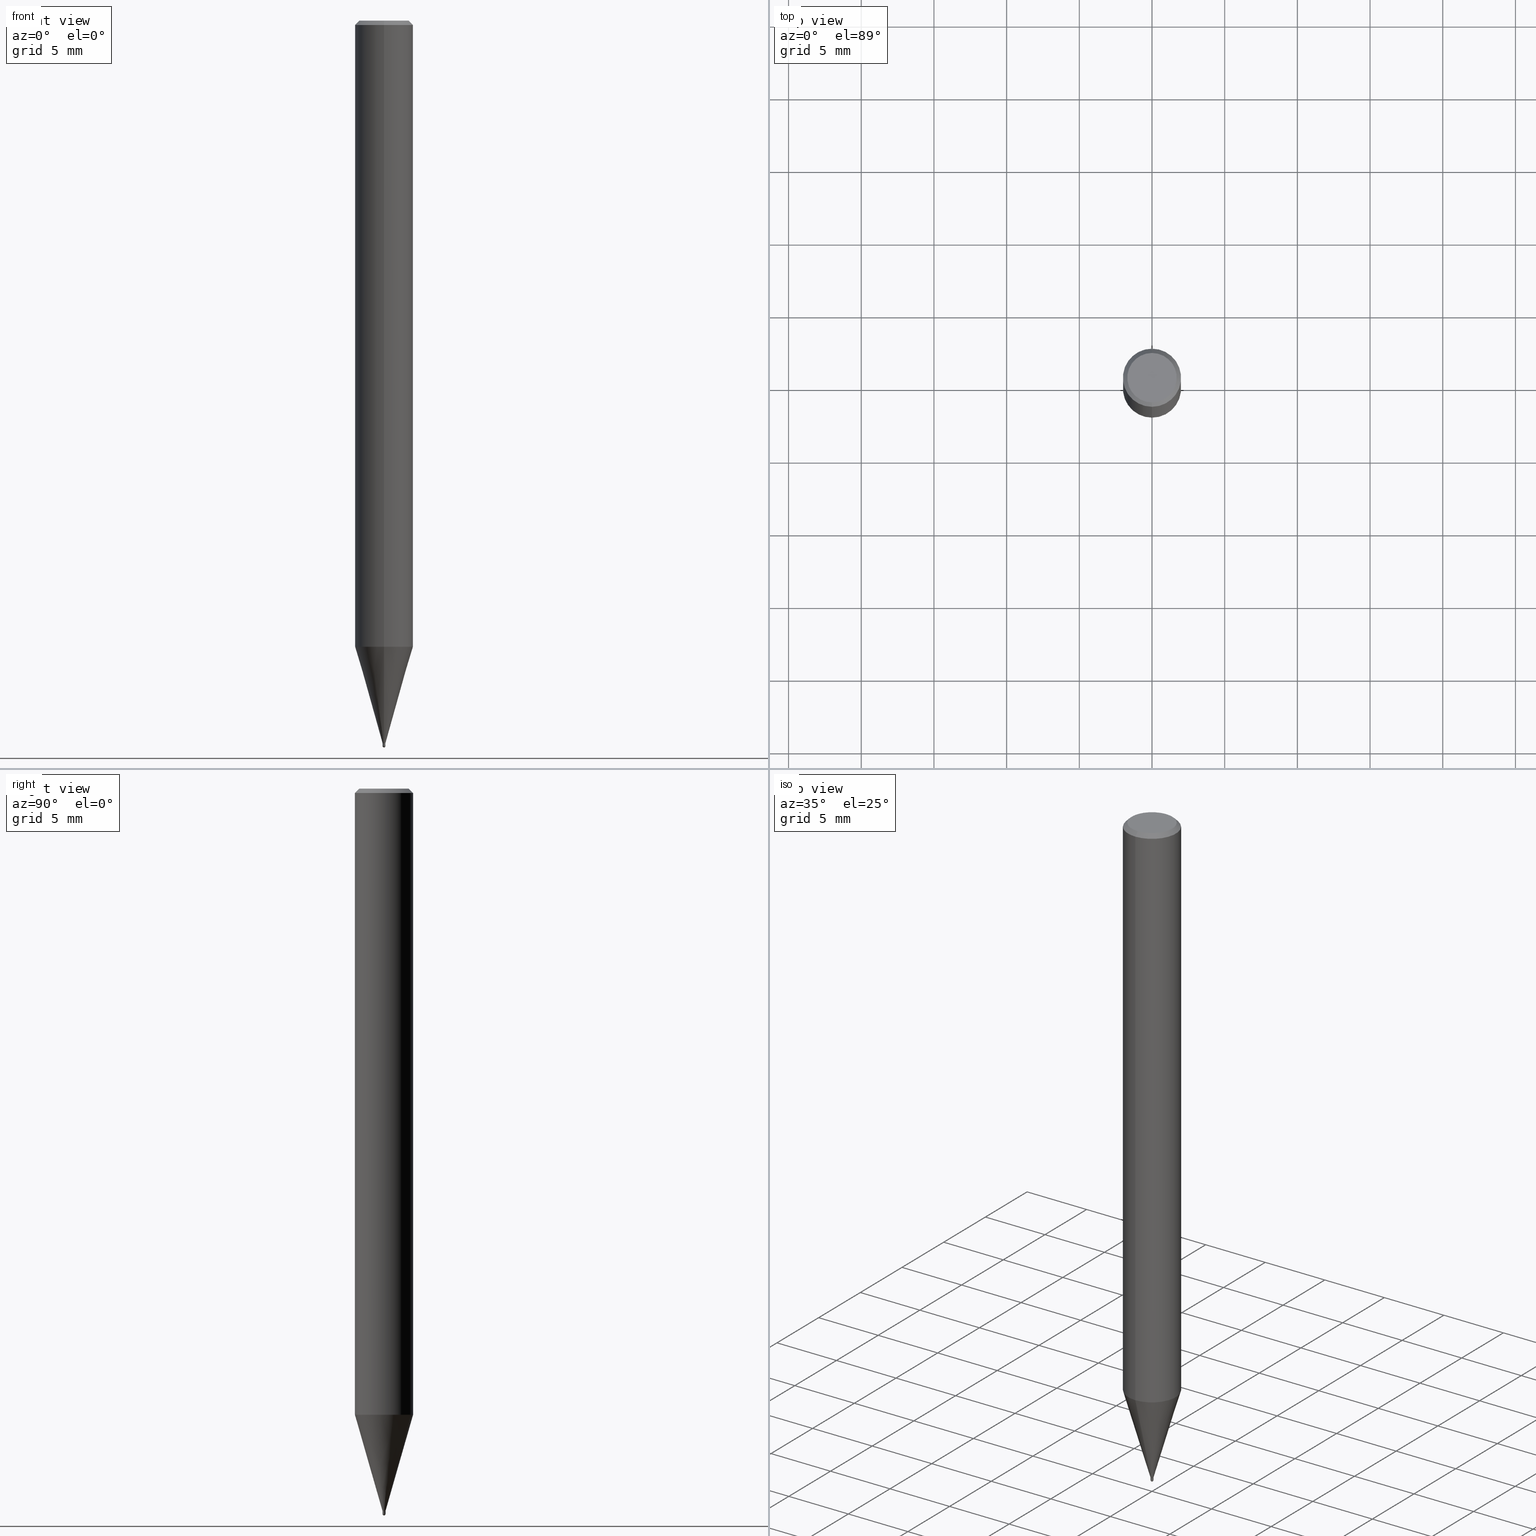
[diagram: canonical four-view strip — front | top / right | iso, engineering-drawing reading convention]
A machine part, canonical four-view strip (front | top / right | iso — engineering-drawing reading convention). The complete STEP part file that produces these views, byte-faithful:
ISO-10303-21;
HEADER;
FILE_DESCRIPTION(('no description'),'unknown implementation level');
FILE_NAME('HSB2002-0030-Huellk.stp','  ',('CIMSOURCE GmbH'),('CADClick - KiM GmbH - www.kimweb.de'),'unknown preprocess','ACIS','unknown authorization');
FILE_SCHEMA(('automotive_design'));
ENDSEC;
DATA;
#1=MECHANICAL_DESIGN_GEOMETRIC_PRESENTATION_REPRESENTATION(' ',(#14,#15,#16,#17,#18,#19,#20,#21,#22,#23,#24,#25,#26,#27,#28,#29,#30,#31,#32,#33,#34,#35,#36,#37,#38,#39,#40,#41,#42,#43,#44,#45,#46,#47,#48,#49,#50,#51,#52,#53,#54,#55,#56,#57,#58,#59,#60,#61,#62,#63,#64,#65,#66),#10);
#2=PRODUCT_DEFINITION_CONTEXT('',#67,'design');
#3=APPLICATION_PROTOCOL_DEFINITION('INTERNATIONAL STANDARD','automotive_design',1994,#67);
#4=PRODUCT_CATEGORY_RELATIONSHIP('NONE','NONE',#68,#69);
#5=SHAPE_DEFINITION_REPRESENTATION(#70,#71);
#6=PRODUCT_DEFINITION_CONTEXT('',#72,'design');
#7=APPLICATION_PROTOCOL_DEFINITION('INTERNATIONAL STANDARD','automotive_design',1994,#72);
#8=PRODUCT_CATEGORY_RELATIONSHIP('NONE','NONE',#73,#74);
#9=SHAPE_DEFINITION_REPRESENTATION(#75,#76);
#10= (GEOMETRIC_REPRESENTATION_CONTEXT(3)GLOBAL_UNCERTAINTY_ASSIGNED_CONTEXT((#79))GLOBAL_UNIT_ASSIGNED_CONTEXT((#81,#82,#83))REPRESENTATION_CONTEXT('NONE','WORKSPACE'));
#14=STYLED_ITEM('',(#85),#86);
#15=STYLED_ITEM('',(#87),#88);
#16=STYLED_ITEM('',(#89),#90);
#17=STYLED_ITEM('',(#91),#92);
#18=STYLED_ITEM('',(#93),#94);
#19=STYLED_ITEM('',(#95),#96);
#20=STYLED_ITEM('',(#97),#98);
#21=STYLED_ITEM('',(#99),#100);
#22=STYLED_ITEM('',(#101),#102);
#23=STYLED_ITEM('',(#103),#104);
#24=STYLED_ITEM('',(#105),#106);
#25=STYLED_ITEM('',(#107),#108);
#26=STYLED_ITEM('',(#109),#110);
#27=STYLED_ITEM('',(#111),#112);
#28=STYLED_ITEM('',(#113),#114);
#29=STYLED_ITEM('',(#115),#116);
#30=STYLED_ITEM('',(#117),#118);
#31=STYLED_ITEM('',(#119),#120);
#32=STYLED_ITEM('',(#121),#122);
#33=STYLED_ITEM('',(#123),#124);
#34=STYLED_ITEM('',(#125),#126);
#35=STYLED_ITEM('',(#127),#128);
#36=STYLED_ITEM('',(#129),#130);
#37=STYLED_ITEM('',(#131),#132);
#38=STYLED_ITEM('',(#133),#134);
#39=STYLED_ITEM('',(#135),#136);
#40=STYLED_ITEM('',(#137),#138);
#41=STYLED_ITEM('',(#139),#140);
#42=STYLED_ITEM('',(#141),#142);
#43=STYLED_ITEM('',(#143),#144);
#44=STYLED_ITEM('',(#145),#146);
#45=STYLED_ITEM('',(#147),#148);
#46=STYLED_ITEM('',(#149),#150);
#47=STYLED_ITEM('',(#151),#152);
#48=STYLED_ITEM('',(#153),#154);
#49=STYLED_ITEM('',(#155),#156);
#50=STYLED_ITEM('',(#157),#158);
#51=STYLED_ITEM('',(#159),#160);
#52=STYLED_ITEM('',(#161),#162);
#53=STYLED_ITEM('',(#163),#164);
#54=STYLED_ITEM('',(#165),#166);
#55=STYLED_ITEM('',(#167),#168);
#56=STYLED_ITEM('',(#169),#170);
#57=STYLED_ITEM('',(#171),#172);
#58=STYLED_ITEM('',(#173),#174);
#59=STYLED_ITEM('',(#175),#176);
#60=STYLED_ITEM('',(#177),#178);
#61=STYLED_ITEM('',(#179),#180);
#62=STYLED_ITEM('',(#181),#182);
#63=STYLED_ITEM('',(#183),#184);
#64=STYLED_ITEM('',(#185),#186);
#65=STYLED_ITEM('',(#187),#188);
#66=STYLED_ITEM('',(#189),#190);
#67=APPLICATION_CONTEXT(' ');
#68=PRODUCT_CATEGORY('part','NONE');
#69=PRODUCT_RELATED_PRODUCT_CATEGORY('detail',' ',(#191));
#70=PRODUCT_DEFINITION_SHAPE('NONE','NONE',#192);
#71=ADVANCED_BREP_SHAPE_REPRESENTATION('1',(#190,#193),#10);
#72=APPLICATION_CONTEXT(' ');
#73=PRODUCT_CATEGORY('part','NONE');
#74=PRODUCT_RELATED_PRODUCT_CATEGORY('detail',' ',(#194));
#75=PRODUCT_DEFINITION_SHAPE('NONE','NONE',#195);
#76=ADVANCED_BREP_SHAPE_REPRESENTATION('2',(#182,#196),#10);
#79=UNCERTAINTY_MEASURE_WITH_UNIT(LENGTH_MEASURE(1.0E-006),#81,'','');
#81= (CONVERSION_BASED_UNIT('MILLIMETRE',#199)LENGTH_UNIT()NAMED_UNIT(#202));
#82= (NAMED_UNIT(#204)PLANE_ANGLE_UNIT()SI_UNIT($,.RADIAN.));
#83= (NAMED_UNIT(#204)SOLID_ANGLE_UNIT()SI_UNIT($,.STERADIAN.));
#85=PRESENTATION_STYLE_ASSIGNMENT((#210));
#86=ADVANCED_FACE('',(#211),#212,.T.);
#87=PRESENTATION_STYLE_ASSIGNMENT((#213));
#88=VERTEX_POINT('',#214);
#89=PRESENTATION_STYLE_ASSIGNMENT((#215));
#90=ADVANCED_FACE('',(#216),#217,.T.);
#91=PRESENTATION_STYLE_ASSIGNMENT((#218));
#92=VERTEX_POINT('',#219);
#93=PRESENTATION_STYLE_ASSIGNMENT((#220));
#94=ADVANCED_FACE('',(#221),#222,.T.);
#95=PRESENTATION_STYLE_ASSIGNMENT((#223));
#96=EDGE_CURVE('',#102,#88,#224,.T.);
#97=PRESENTATION_STYLE_ASSIGNMENT((#225));
#98=VERTEX_POINT('',#226);
#99=PRESENTATION_STYLE_ASSIGNMENT((#227));
#100=EDGE_CURVE('',#152,#92,#228,.T.);
#101=PRESENTATION_STYLE_ASSIGNMENT((#229));
#102=VERTEX_POINT('',#230);
#103=PRESENTATION_STYLE_ASSIGNMENT((#231));
#104=EDGE_CURVE('',#98,#184,#232,.T.);
#105=PRESENTATION_STYLE_ASSIGNMENT((#233));
#106=EDGE_CURVE('',#128,#188,#234,.T.);
#107=PRESENTATION_STYLE_ASSIGNMENT((#235));
#108=VERTEX_POINT('',#236);
#109=PRESENTATION_STYLE_ASSIGNMENT((#237));
#110=EDGE_CURVE('',#88,#102,#238,.T.);
#111=PRESENTATION_STYLE_ASSIGNMENT((#239));
#112=EDGE_CURVE('',#108,#118,#240,.T.);
#113=PRESENTATION_STYLE_ASSIGNMENT((#241));
#114=EDGE_CURVE('',#138,#142,#242,.T.);
#115=PRESENTATION_STYLE_ASSIGNMENT((#243));
#116=ADVANCED_FACE('',(#244),#245,.T.);
#117=PRESENTATION_STYLE_ASSIGNMENT((#246));
#118=VERTEX_POINT('',#247);
#119=PRESENTATION_STYLE_ASSIGNMENT((#248));
#120=ADVANCED_FACE('',(#249),#250,.T.);
#121=PRESENTATION_STYLE_ASSIGNMENT((#251));
#122=EDGE_CURVE('',#128,#88,#252,.T.);
#123=PRESENTATION_STYLE_ASSIGNMENT((#253));
#124=EDGE_CURVE('',#92,#152,#254,.T.);
#125=PRESENTATION_STYLE_ASSIGNMENT((#255));
#126=EDGE_CURVE('',#142,#138,#256,.T.);
#127=PRESENTATION_STYLE_ASSIGNMENT((#257));
#128=VERTEX_POINT('',#258);
#129=PRESENTATION_STYLE_ASSIGNMENT((#259));
#130=ADVANCED_FACE('',(#260),#261,.T.);
#131=PRESENTATION_STYLE_ASSIGNMENT((#262));
#132=ADVANCED_FACE('',(#263),#264,.T.);
#133=PRESENTATION_STYLE_ASSIGNMENT((#265));
#134=EDGE_CURVE('',#102,#188,#266,.T.);
#135=PRESENTATION_STYLE_ASSIGNMENT((#267));
#136=ADVANCED_FACE('',(#268),#269,.T.);
#137=PRESENTATION_STYLE_ASSIGNMENT((#270));
#138=VERTEX_POINT('',#271);
#139=PRESENTATION_STYLE_ASSIGNMENT((#272));
#140=EDGE_CURVE('',#176,#138,#273,.T.);
#141=PRESENTATION_STYLE_ASSIGNMENT((#274));
#142=VERTEX_POINT('',#275);
#143=PRESENTATION_STYLE_ASSIGNMENT((#276));
#144=ADVANCED_FACE('',(#277),#278,.T.);
#145=PRESENTATION_STYLE_ASSIGNMENT((#279));
#146=ADVANCED_FACE('',(#280),#281,.T.);
#147=PRESENTATION_STYLE_ASSIGNMENT((#282));
#148=EDGE_CURVE('',#152,#176,#283,.T.);
#149=PRESENTATION_STYLE_ASSIGNMENT((#284));
#150=EDGE_CURVE('',#188,#128,#285,.T.);
#151=PRESENTATION_STYLE_ASSIGNMENT((#286));
#152=VERTEX_POINT('',#287);
#153=PRESENTATION_STYLE_ASSIGNMENT((#288));
#154=EDGE_CURVE('',#142,#168,#289,.T.);
#155=PRESENTATION_STYLE_ASSIGNMENT((#290));
#156=EDGE_CURVE('',#168,#92,#291,.T.);
#157=PRESENTATION_STYLE_ASSIGNMENT((#292));
#158=EDGE_CURVE('',#98,#118,#293,.T.);
#159=PRESENTATION_STYLE_ASSIGNMENT((#294));
#160=ADVANCED_FACE('',(#295),#296,.T.);
#161=PRESENTATION_STYLE_ASSIGNMENT((#297));
#162=ADVANCED_FACE('',(#298),#299,.T.);
#163=PRESENTATION_STYLE_ASSIGNMENT((#300));
#164=EDGE_CURVE('',#98,#118,#301,.T.);
#165=PRESENTATION_STYLE_ASSIGNMENT((#302));
#166=EDGE_CURVE('',#108,#184,#303,.T.);
#167=PRESENTATION_STYLE_ASSIGNMENT((#304));
#168=VERTEX_POINT('',#305);
#169=PRESENTATION_STYLE_ASSIGNMENT((#306));
#170=EDGE_CURVE('',#168,#176,#307,.T.);
#171=PRESENTATION_STYLE_ASSIGNMENT((#308));
#172=ADVANCED_FACE('',(#309,#310),#311,.T.);
#173=PRESENTATION_STYLE_ASSIGNMENT((#312));
#174=EDGE_CURVE('',#118,#98,#313,.T.);
#175=PRESENTATION_STYLE_ASSIGNMENT((#314));
#176=VERTEX_POINT('',#315);
#177=PRESENTATION_STYLE_ASSIGNMENT((#316));
#178=ADVANCED_FACE('',(#317),#318,.T.);
#179=PRESENTATION_STYLE_ASSIGNMENT((#319));
#180=EDGE_CURVE('',#176,#168,#320,.T.);
#181=PRESENTATION_STYLE_ASSIGNMENT((#321));
#182=MANIFOLD_SOLID_BREP('2',#322);
#183=PRESENTATION_STYLE_ASSIGNMENT((#323));
#184=VERTEX_POINT('',#324);
#185=PRESENTATION_STYLE_ASSIGNMENT((#325));
#186=EDGE_CURVE('',#184,#108,#326,.T.);
#187=PRESENTATION_STYLE_ASSIGNMENT((#327));
#188=VERTEX_POINT('',#328);
#189=PRESENTATION_STYLE_ASSIGNMENT((#329));
#190=MANIFOLD_SOLID_BREP('1',#330);
#191=PRODUCT('1','1','PART-1-DESC',(#331));
#192=PRODUCT_DEFINITION('NONE','NONE',#332,#2);
#193=AXIS2_PLACEMENT_3D('',#333,#334,#335);
#194=PRODUCT('2','2','PART-2-DESC',(#336));
#195=PRODUCT_DEFINITION('NONE','NONE',#337,#6);
#196=AXIS2_PLACEMENT_3D('',#338,#339,#340);
#199=LENGTH_MEASURE_WITH_UNIT(LENGTH_MEASURE(1.0),#341);
#202=DIMENSIONAL_EXPONENTS(1.0,0.0,0.0,0.0,0.0,0.0,0.0);
#204=DIMENSIONAL_EXPONENTS(0.0,0.0,0.0,0.0,0.0,0.0,0.0);
#210=SURFACE_STYLE_USAGE(.BOTH.,#342);
#211=FACE_OUTER_BOUND('',#343,.T.);
#212=CYLINDRICAL_SURFACE('',#344,2.0);
#213=POINT_STYLE(' ',#345,POSITIVE_LENGTH_MEASURE(1.0E-006),#346);
#214=CARTESIAN_POINT('',(2.44915147732706E-016,-1.99995,-43.074));
#215=SURFACE_STYLE_USAGE(.BOTH.,#347);
#216=FACE_OUTER_BOUND('',#348,.T.);
#217=CONICAL_SURFACE('',#349,0.09995,0.000499999958333354);
#218=POINT_STYLE(' ',#350,POSITIVE_LENGTH_MEASURE(1.0E-006),#351);
#219=CARTESIAN_POINT('',(0.0,2.0,-43.074));
#220=SURFACE_STYLE_USAGE(.BOTH.,#352);
#221=FACE_OUTER_BOUND('',#353,.T.);
#222=SPHERICAL_SURFACE('',#354,0.1);
#223=CURVE_STYLE('',#355,POSITIVE_LENGTH_MEASURE(1.0E-006),#356);
#224=CIRCLE('',#357,1.99995);
#225=POINT_STYLE(' ',#358,POSITIVE_LENGTH_MEASURE(1.0E-006),#359);
#226=CARTESIAN_POINT('',(1.22460635382238E-017,-0.1,-49.9));
#227=CURVE_STYLE('',#360,POSITIVE_LENGTH_MEASURE(1.0E-006),#361);
#228=CIRCLE('',#362,2.0);
#229=POINT_STYLE(' ',#363,POSITIVE_LENGTH_MEASURE(1.0E-006),#364);
#230=CARTESIAN_POINT('',(0.0,1.99995,-43.074));
#231=CURVE_STYLE('',#365,POSITIVE_LENGTH_MEASURE(1.0E-006),#366);
#232=LINE('',#367,#368);
#233=CURVE_STYLE('',#369,POSITIVE_LENGTH_MEASURE(1.0E-006),#370);
#234=CIRCLE('',#371,0.09995);
#235=POINT_STYLE(' ',#372,POSITIVE_LENGTH_MEASURE(1.0E-006),#373);
#236=CARTESIAN_POINT('',(0.0,0.0999,-49.7));
#237=CURVE_STYLE('',#374,POSITIVE_LENGTH_MEASURE(1.0E-006),#375);
#238=CIRCLE('',#376,1.99995);
#239=CURVE_STYLE('',#377,POSITIVE_LENGTH_MEASURE(1.0E-006),#378);
#240=LINE('',#379,#380);
#241=CURVE_STYLE('',#381,POSITIVE_LENGTH_MEASURE(1.0E-006),#382);
#242=CIRCLE('',#383,1.7);
#243=SURFACE_STYLE_USAGE(.BOTH.,#384);
#244=FACE_OUTER_BOUND('',#385,.T.);
#245=CYLINDRICAL_SURFACE('',#386,2.0);
#246=POINT_STYLE(' ',#387,POSITIVE_LENGTH_MEASURE(1.0E-006),#388);
#247=CARTESIAN_POINT('',(0.0,0.1,-49.9));
#248=SURFACE_STYLE_USAGE(.BOTH.,#389);
#249=FACE_OUTER_BOUND('',#390,.T.);
#250=CONICAL_SURFACE('',#391,1.04995,0.279256176986881);
#251=CURVE_STYLE('',#392,POSITIVE_LENGTH_MEASURE(1.0E-006),#393);
#252=LINE('',#394,#395);
#253=CURVE_STYLE('',#396,POSITIVE_LENGTH_MEASURE(1.0E-006),#397);
#254=CIRCLE('',#398,2.0);
#255=CURVE_STYLE('',#399,POSITIVE_LENGTH_MEASURE(1.0E-006),#400);
#256=CIRCLE('',#401,1.7);
#257=POINT_STYLE(' ',#402,POSITIVE_LENGTH_MEASURE(1.0E-006),#403);
#258=CARTESIAN_POINT('',(1.22399405064546E-017,-0.09995,-49.7));
#259=SURFACE_STYLE_USAGE(.BOTH.,#404);
#260=FACE_OUTER_BOUND('',#405,.T.);
#261=PLANE('',#406);
#262=SURFACE_STYLE_USAGE(.BOTH.,#407);
#263=FACE_OUTER_BOUND('',#408,.T.);
#264=CONICAL_SURFACE('',#409,1.85,0.785398163397453);
#265=CURVE_STYLE('',#410,POSITIVE_LENGTH_MEASURE(1.0E-006),#411);
#266=LINE('',#412,#413);
#267=SURFACE_STYLE_USAGE(.BOTH.,#414);
#268=FACE_OUTER_BOUND('',#415,.T.);
#269=CONICAL_SURFACE('',#416,1.04995,0.279256176986881);
#270=POINT_STYLE(' ',#417,POSITIVE_LENGTH_MEASURE(1.0E-006),#418);
#271=CARTESIAN_POINT('',(2.08183080149804E-016,-1.7,0.0));
#272=CURVE_STYLE('',#419,POSITIVE_LENGTH_MEASURE(1.0E-006),#420);
#273=LINE('',#421,#422);
#274=POINT_STYLE(' ',#423,POSITIVE_LENGTH_MEASURE(1.0E-006),#424);
#275=CARTESIAN_POINT('',(0.0,1.7,0.0));
#276=SURFACE_STYLE_USAGE(.BOTH.,#425);
#277=FACE_OUTER_BOUND('',#426,.T.);
#278=SPHERICAL_SURFACE('',#427,0.1);
#279=SURFACE_STYLE_USAGE(.BOTH.,#428);
#280=FACE_OUTER_BOUND('',#429,.T.);
#281=CONICAL_SURFACE('',#430,0.09995,0.000499999958333354);
#282=CURVE_STYLE('',#431,POSITIVE_LENGTH_MEASURE(1.0E-006),#432);
#283=LINE('',#433,#434);
#284=CURVE_STYLE('',#435,POSITIVE_LENGTH_MEASURE(1.0E-006),#436);
#285=CIRCLE('',#437,0.09995);
#286=POINT_STYLE(' ',#438,POSITIVE_LENGTH_MEASURE(1.0E-006),#439);
#287=CARTESIAN_POINT('',(2.44921270764475E-016,-2.0,-43.074));
#288=CURVE_STYLE('',#440,POSITIVE_LENGTH_MEASURE(1.0E-006),#441);
#289=LINE('',#442,#443);
#290=CURVE_STYLE('',#444,POSITIVE_LENGTH_MEASURE(1.0E-006),#445);
#291=LINE('',#446,#447);
#292=CURVE_STYLE('',#448,POSITIVE_LENGTH_MEASURE(1.0E-006),#449);
#293=CIRCLE('',#450,0.1);
#294=SURFACE_STYLE_USAGE(.BOTH.,#451);
#295=FACE_OUTER_BOUND('',#452,.T.);
#296=PLANE('',#453);
#297=SURFACE_STYLE_USAGE(.BOTH.,#454);
#298=FACE_OUTER_BOUND('',#455,.T.);
#299=CONICAL_SURFACE('',#456,1.85,0.785398163397453);
#300=CURVE_STYLE('',#457,POSITIVE_LENGTH_MEASURE(1.0E-006),#458);
#301=CIRCLE('',#459,0.1);
#302=CURVE_STYLE('',#460,POSITIVE_LENGTH_MEASURE(1.0E-006),#461);
#303=CIRCLE('',#462,0.0999);
#304=POINT_STYLE(' ',#463,POSITIVE_LENGTH_MEASURE(1.0E-006),#464);
#305=CARTESIAN_POINT('',(0.0,2.0,-0.299999999999997));
#306=CURVE_STYLE('',#465,POSITIVE_LENGTH_MEASURE(1.0E-006),#466);
#307=CIRCLE('',#467,2.0);
#308=SURFACE_STYLE_USAGE(.BOTH.,#468);
#309=FACE_OUTER_BOUND('',#469,.T.);
#310=FACE_BOUND('',#470,.T.);
#311=PLANE('',#471);
#312=CURVE_STYLE('',#472,POSITIVE_LENGTH_MEASURE(1.0E-006),#473);
#313=CIRCLE('',#474,0.1);
#314=POINT_STYLE(' ',#475,POSITIVE_LENGTH_MEASURE(1.0E-006),#476);
#315=CARTESIAN_POINT('',(2.44921270764475E-016,-2.0,-0.299999999999997));
#316=SURFACE_STYLE_USAGE(.BOTH.,#477);
#317=FACE_OUTER_BOUND('',#478,.T.);
#318=PLANE('',#479);
#319=CURVE_STYLE('',#480,POSITIVE_LENGTH_MEASURE(1.0E-006),#481);
#320=CIRCLE('',#482,2.0);
#321=SURFACE_STYLE_USAGE(.BOTH.,#483);
#322=CLOSED_SHELL('',(#94,#146,#178,#90,#144));
#323=POINT_STYLE(' ',#484,POSITIVE_LENGTH_MEASURE(1.0E-006),#485);
#324=CARTESIAN_POINT('',(1.22338174746855E-017,-0.0999,-49.7));
#325=CURVE_STYLE('',#486,POSITIVE_LENGTH_MEASURE(1.0E-006),#487);
#326=CIRCLE('',#488,0.0999);
#327=POINT_STYLE(' ',#489,POSITIVE_LENGTH_MEASURE(1.0E-006),#490);
#328=CARTESIAN_POINT('',(0.0,0.09995,-49.7));
#329=SURFACE_STYLE_USAGE(.BOTH.,#491);
#330=CLOSED_SHELL('',(#120,#116,#162,#172,#160,#132,#86,#136,#130));
#331=PRODUCT_CONTEXT('',#67,'mechanical');
#332=PRODUCT_DEFINITION_FORMATION_WITH_SPECIFIED_SOURCE(' ','NONE',#191,.NOT_KNOWN.);
#333=CARTESIAN_POINT('',(0.0,0.0,0.0));
#334=DIRECTION('',(0.0,0.0,1.0));
#335=DIRECTION('',(1.0,0.0,0.0));
#336=PRODUCT_CONTEXT('',#72,'mechanical');
#337=PRODUCT_DEFINITION_FORMATION_WITH_SPECIFIED_SOURCE(' ','NONE',#194,.NOT_KNOWN.);
#338=CARTESIAN_POINT('',(0.0,0.0,0.0));
#339=DIRECTION('',(0.0,0.0,1.0));
#340=DIRECTION('',(1.0,0.0,0.0));
#341= (NAMED_UNIT(#202)LENGTH_UNIT()SI_UNIT(.MILLI.,.METRE.));
#342=SURFACE_SIDE_STYLE('',(#493));
#343=EDGE_LOOP('',(#494,#495,#496,#497));
#344=AXIS2_PLACEMENT_3D('',#498,#499,#500);
#345=PRE_DEFINED_MARKER('');
#346=COLOUR_RGB('',0.498039215803146,0.498039215803146,0.498039215803146);
#347=SURFACE_SIDE_STYLE('',(#501));
#348=EDGE_LOOP('',(#502,#503,#504,#505));
#349=AXIS2_PLACEMENT_3D('',#506,#507,#508);
#350=PRE_DEFINED_MARKER('');
#351=COLOUR_RGB('',0.498039215803146,0.498039215803146,0.498039215803146);
#352=SURFACE_SIDE_STYLE('',(#509));
#353=EDGE_LOOP('',(#510,#511));
#354=AXIS2_PLACEMENT_3D('',#512,#513,#514);
#355=DRAUGHTING_PRE_DEFINED_CURVE_FONT('continuous');
#356=COLOUR_RGB('',0.498039215803146,0.498039215803146,0.498039215803146);
#357=AXIS2_PLACEMENT_3D('',#515,#516,#517);
#358=PRE_DEFINED_MARKER('');
#359=COLOUR_RGB('',0.800000011920929,0.800000011920929,0.800000011920929);
#360=DRAUGHTING_PRE_DEFINED_CURVE_FONT('continuous');
#361=COLOUR_RGB('',0.498039215803146,0.498039215803146,0.498039215803146);
#362=AXIS2_PLACEMENT_3D('',#518,#519,#520);
#363=PRE_DEFINED_MARKER('');
#364=COLOUR_RGB('',0.498039215803146,0.498039215803146,0.498039215803146);
#365=DRAUGHTING_PRE_DEFINED_CURVE_FONT('continuous');
#366=COLOUR_RGB('',0.800000011920929,0.800000011920929,0.800000011920929);
#367=CARTESIAN_POINT('',(1.22399405064547E-017,-0.09995,-49.8));
#368=VECTOR('',#521,1.0);
#369=DRAUGHTING_PRE_DEFINED_CURVE_FONT('continuous');
#370=COLOUR_RGB('',0.498039215803146,0.498039215803146,0.498039215803146);
#371=AXIS2_PLACEMENT_3D('',#522,#523,#524);
#372=PRE_DEFINED_MARKER('');
#373=COLOUR_RGB('',0.800000011920929,0.800000011920929,0.800000011920929);
#374=DRAUGHTING_PRE_DEFINED_CURVE_FONT('continuous');
#375=COLOUR_RGB('',0.498039215803146,0.498039215803146,0.498039215803146);
#376=AXIS2_PLACEMENT_3D('',#525,#526,#527);
#377=DRAUGHTING_PRE_DEFINED_CURVE_FONT('continuous');
#378=COLOUR_RGB('',0.800000011920929,0.800000011920929,0.800000011920929);
#379=CARTESIAN_POINT('',(-1.22399405064547E-017,0.09995,-49.8));
#380=VECTOR('',#528,1.0);
#381=DRAUGHTING_PRE_DEFINED_CURVE_FONT('continuous');
#382=COLOUR_RGB('',0.498039215803146,0.498039215803146,0.498039215803146);
#383=AXIS2_PLACEMENT_3D('',#529,#530,#531);
#384=SURFACE_SIDE_STYLE('',(#532));
#385=EDGE_LOOP('',(#533,#534,#535,#536));
#386=AXIS2_PLACEMENT_3D('',#537,#538,#539);
#387=PRE_DEFINED_MARKER('');
#388=COLOUR_RGB('',0.800000011920929,0.800000011920929,0.800000011920929);
#389=SURFACE_SIDE_STYLE('',(#540));
#390=EDGE_LOOP('',(#541,#542,#543,#544));
#391=AXIS2_PLACEMENT_3D('',#545,#546,#547);
#392=DRAUGHTING_PRE_DEFINED_CURVE_FONT('continuous');
#393=COLOUR_RGB('',0.498039215803146,0.498039215803146,0.498039215803146);
#394=CARTESIAN_POINT('',(1.28577544119581E-016,-1.04995,-46.387));
#395=VECTOR('',#548,1.0);
#396=DRAUGHTING_PRE_DEFINED_CURVE_FONT('continuous');
#397=COLOUR_RGB('',0.498039215803146,0.498039215803146,0.498039215803146);
#398=AXIS2_PLACEMENT_3D('',#549,#550,#551);
#399=DRAUGHTING_PRE_DEFINED_CURVE_FONT('continuous');
#400=COLOUR_RGB('',0.498039215803146,0.498039215803146,0.498039215803146);
#401=AXIS2_PLACEMENT_3D('',#552,#553,#554);
#402=PRE_DEFINED_MARKER('');
#403=COLOUR_RGB('',0.498039215803146,0.498039215803146,0.498039215803146);
#404=SURFACE_SIDE_STYLE('',(#555));
#405=EDGE_LOOP('',(#556,#557));
#406=AXIS2_PLACEMENT_3D('',#558,#559,#560);
#407=SURFACE_SIDE_STYLE('',(#561));
#408=EDGE_LOOP('',(#562,#563,#564,#565));
#409=AXIS2_PLACEMENT_3D('',#566,#567,#568);
#410=DRAUGHTING_PRE_DEFINED_CURVE_FONT('continuous');
#411=COLOUR_RGB('',0.498039215803146,0.498039215803146,0.498039215803146);
#412=CARTESIAN_POINT('',(-1.28577544119581E-016,1.04995,-46.387));
#413=VECTOR('',#569,1.0);
#414=SURFACE_SIDE_STYLE('',(#570));
#415=EDGE_LOOP('',(#571,#572,#573,#574));
#416=AXIS2_PLACEMENT_3D('',#575,#576,#577);
#417=PRE_DEFINED_MARKER('');
#418=COLOUR_RGB('',0.498039215803146,0.498039215803146,0.498039215803146);
#419=DRAUGHTING_PRE_DEFINED_CURVE_FONT('continuous');
#420=COLOUR_RGB('',0.498039215803146,0.498039215803146,0.498039215803146);
#421=CARTESIAN_POINT('',(2.2655217545714E-016,-1.85,-0.149999999999999));
#422=VECTOR('',#578,1.0);
#423=PRE_DEFINED_MARKER('');
#424=COLOUR_RGB('',0.498039215803146,0.498039215803146,0.498039215803146);
#425=SURFACE_SIDE_STYLE('',(#579));
#426=EDGE_LOOP('',(#580,#581));
#427=AXIS2_PLACEMENT_3D('',#582,#583,#584);
#428=SURFACE_SIDE_STYLE('',(#585));
#429=EDGE_LOOP('',(#586,#587,#588,#589));
#430=AXIS2_PLACEMENT_3D('',#590,#591,#592);
#431=DRAUGHTING_PRE_DEFINED_CURVE_FONT('continuous');
#432=COLOUR_RGB('',0.498039215803146,0.498039215803146,0.498039215803146);
#433=CARTESIAN_POINT('',(2.44921270764475E-016,-2.0,-21.687));
#434=VECTOR('',#593,1.0);
#435=DRAUGHTING_PRE_DEFINED_CURVE_FONT('continuous');
#436=COLOUR_RGB('',0.498039215803146,0.498039215803146,0.498039215803146);
#437=AXIS2_PLACEMENT_3D('',#594,#595,#596);
#438=PRE_DEFINED_MARKER('');
#439=COLOUR_RGB('',0.498039215803146,0.498039215803146,0.498039215803146);
#440=DRAUGHTING_PRE_DEFINED_CURVE_FONT('continuous');
#441=COLOUR_RGB('',0.498039215803146,0.498039215803146,0.498039215803146);
#442=CARTESIAN_POINT('',(-2.2655217545714E-016,1.85,-0.149999999999999));
#443=VECTOR('',#597,1.0);
#444=DRAUGHTING_PRE_DEFINED_CURVE_FONT('continuous');
#445=COLOUR_RGB('',0.498039215803146,0.498039215803146,0.498039215803146);
#446=CARTESIAN_POINT('',(-2.44921270764475E-016,2.0,-21.687));
#447=VECTOR('',#598,1.0);
#448=DRAUGHTING_PRE_DEFINED_CURVE_FONT('continuous');
#449=COLOUR_RGB('',0.800000011920929,0.800000011920929,0.800000011920929);
#450=AXIS2_PLACEMENT_3D('',#599,#600,#601);
#451=SURFACE_SIDE_STYLE('',(#602));
#452=EDGE_LOOP('',(#603,#604));
#453=AXIS2_PLACEMENT_3D('',#605,#606,#607);
#454=SURFACE_SIDE_STYLE('',(#608));
#455=EDGE_LOOP('',(#609,#610,#611,#612));
#456=AXIS2_PLACEMENT_3D('',#613,#614,#615);
#457=DRAUGHTING_PRE_DEFINED_CURVE_FONT('continuous');
#458=COLOUR_RGB('',0.800000011920929,0.800000011920929,0.800000011920929);
#459=AXIS2_PLACEMENT_3D('',#616,#617,#618);
#460=DRAUGHTING_PRE_DEFINED_CURVE_FONT('continuous');
#461=COLOUR_RGB('',0.800000011920929,0.800000011920929,0.800000011920929);
#462=AXIS2_PLACEMENT_3D('',#619,#620,#621);
#463=PRE_DEFINED_MARKER('');
#464=COLOUR_RGB('',0.498039215803146,0.498039215803146,0.498039215803146);
#465=DRAUGHTING_PRE_DEFINED_CURVE_FONT('continuous');
#466=COLOUR_RGB('',0.498039215803146,0.498039215803146,0.498039215803146);
#467=AXIS2_PLACEMENT_3D('',#622,#623,#624);
#468=SURFACE_SIDE_STYLE('',(#625));
#469=EDGE_LOOP('',(#626,#627));
#470=EDGE_LOOP('',(#628,#629));
#471=AXIS2_PLACEMENT_3D('',#630,#631,#632);
#472=DRAUGHTING_PRE_DEFINED_CURVE_FONT('continuous');
#473=COLOUR_RGB('',0.800000011920929,0.800000011920929,0.800000011920929);
#474=AXIS2_PLACEMENT_3D('',#633,#634,#635);
#475=PRE_DEFINED_MARKER('');
#476=COLOUR_RGB('',0.498039215803146,0.498039215803146,0.498039215803146);
#477=SURFACE_SIDE_STYLE('',(#636));
#478=EDGE_LOOP('',(#637,#638));
#479=AXIS2_PLACEMENT_3D('',#639,#640,#641);
#480=DRAUGHTING_PRE_DEFINED_CURVE_FONT('continuous');
#481=COLOUR_RGB('',0.498039215803146,0.498039215803146,0.498039215803146);
#482=AXIS2_PLACEMENT_3D('',#642,#643,#644);
#483=SURFACE_SIDE_STYLE('',(#645));
#484=PRE_DEFINED_MARKER('');
#485=COLOUR_RGB('',0.800000011920929,0.800000011920929,0.800000011920929);
#486=DRAUGHTING_PRE_DEFINED_CURVE_FONT('continuous');
#487=COLOUR_RGB('',0.800000011920929,0.800000011920929,0.800000011920929);
#488=AXIS2_PLACEMENT_3D('',#646,#647,#648);
#489=PRE_DEFINED_MARKER('');
#490=COLOUR_RGB('',0.498039215803146,0.498039215803146,0.498039215803146);
#491=SURFACE_SIDE_STYLE('',(#649));
#493=SURFACE_STYLE_FILL_AREA(#650);
#494=ORIENTED_EDGE('',*,*,#156,.T.);
#495=ORIENTED_EDGE('',*,*,#100,.F.);
#496=ORIENTED_EDGE('',*,*,#148,.T.);
#497=ORIENTED_EDGE('',*,*,#180,.T.);
#498=CARTESIAN_POINT('',(0.0,0.0,-21.687));
#499=DIRECTION('',(-0.0,-0.0,1.0));
#500=DIRECTION('',(0.0,1.0,0.0));
#501=SURFACE_STYLE_FILL_AREA(#651);
#502=ORIENTED_EDGE('',*,*,#112,.T.);
#503=ORIENTED_EDGE('',*,*,#158,.F.);
#504=ORIENTED_EDGE('',*,*,#104,.T.);
#505=ORIENTED_EDGE('',*,*,#186,.T.);
#506=CARTESIAN_POINT('',(0.0,0.0,-49.8));
#507=DIRECTION('',(0.0,-0.0,-1.0));
#508=DIRECTION('',(0.0,1.0,0.0));
#509=SURFACE_STYLE_FILL_AREA(#652);
#510=ORIENTED_EDGE('',*,*,#164,.F.);
#511=ORIENTED_EDGE('',*,*,#158,.T.);
#512=CARTESIAN_POINT('',(0.0,0.0,-49.9));
#513=DIRECTION('',(0.0,1.0,0.0));
#514=DIRECTION('',(0.0,0.0,-1.0));
#515=CARTESIAN_POINT('',(0.0,0.0,-43.074));
#516=DIRECTION('',(0.0,0.0,-1.0));
#517=DIRECTION('',(0.0,1.0,0.0));
#518=CARTESIAN_POINT('',(0.0,0.0,-43.074));
#519=DIRECTION('',(0.0,0.0,-1.0));
#520=DIRECTION('',(0.0,1.0,0.0));
#521=DIRECTION('',(-6.12303100373323E-020,0.000499999937500026,0.999999875000024));
#522=CARTESIAN_POINT('',(0.0,0.0,-49.7));
#523=DIRECTION('',(0.0,0.0,-1.0));
#524=DIRECTION('',(0.0,1.0,0.0));
#525=CARTESIAN_POINT('',(0.0,0.0,-43.074));
#526=DIRECTION('',(0.0,0.0,-1.0));
#527=DIRECTION('',(0.0,1.0,0.0));
#528=DIRECTION('',(-6.12303100373323E-020,0.000499999937500026,-0.999999875000024));
#529=CARTESIAN_POINT('',(0.0,0.0,0.0));
#530=DIRECTION('',(0.0,0.0,-1.0));
#531=DIRECTION('',(0.0,1.0,0.0));
#532=SURFACE_STYLE_FILL_AREA(#653);
#533=ORIENTED_EDGE('',*,*,#156,.F.);
#534=ORIENTED_EDGE('',*,*,#170,.T.);
#535=ORIENTED_EDGE('',*,*,#148,.F.);
#536=ORIENTED_EDGE('',*,*,#124,.F.);
#537=CARTESIAN_POINT('',(0.0,0.0,-21.687));
#538=DIRECTION('',(-0.0,-0.0,1.0));
#539=DIRECTION('',(0.0,1.0,0.0));
#540=SURFACE_STYLE_FILL_AREA(#654);
#541=ORIENTED_EDGE('',*,*,#134,.F.);
#542=ORIENTED_EDGE('',*,*,#96,.T.);
#543=ORIENTED_EDGE('',*,*,#122,.F.);
#544=ORIENTED_EDGE('',*,*,#150,.F.);
#545=CARTESIAN_POINT('',(0.0,0.0,-46.387));
#546=DIRECTION('',(-0.0,-0.0,1.0));
#547=DIRECTION('',(0.0,1.0,0.0));
#548=DIRECTION('',(3.37551373444795E-017,-0.275640717028123,0.961260732120179));
#549=CARTESIAN_POINT('',(0.0,0.0,-43.074));
#550=DIRECTION('',(0.0,0.0,-1.0));
#551=DIRECTION('',(0.0,1.0,0.0));
#552=CARTESIAN_POINT('',(0.0,0.0,0.0));
#553=DIRECTION('',(0.0,0.0,-1.0));
#554=DIRECTION('',(0.0,1.0,0.0));
#555=SURFACE_STYLE_FILL_AREA(#655);
#556=ORIENTED_EDGE('',*,*,#150,.T.);
#557=ORIENTED_EDGE('',*,*,#106,.T.);
#558=CARTESIAN_POINT('',(0.0,0.049975,-49.7));
#559=DIRECTION('',(0.0,0.0,-1.0));
#560=DIRECTION('',(0.0,1.0,0.0));
#561=SURFACE_STYLE_FILL_AREA(#656);
#562=ORIENTED_EDGE('',*,*,#154,.T.);
#563=ORIENTED_EDGE('',*,*,#180,.F.);
#564=ORIENTED_EDGE('',*,*,#140,.T.);
#565=ORIENTED_EDGE('',*,*,#114,.T.);
#566=CARTESIAN_POINT('',(0.0,0.0,-0.149999999999999));
#567=DIRECTION('',(0.0,-0.0,-1.0));
#568=DIRECTION('',(0.0,1.0,0.0));
#569=DIRECTION('',(3.37551373444795E-017,-0.275640717028123,-0.961260732120179));
#570=SURFACE_STYLE_FILL_AREA(#657);
#571=ORIENTED_EDGE('',*,*,#134,.T.);
#572=ORIENTED_EDGE('',*,*,#106,.F.);
#573=ORIENTED_EDGE('',*,*,#122,.T.);
#574=ORIENTED_EDGE('',*,*,#110,.T.);
#575=CARTESIAN_POINT('',(0.0,0.0,-46.387));
#576=DIRECTION('',(-0.0,-0.0,1.0));
#577=DIRECTION('',(0.0,1.0,0.0));
#578=DIRECTION('',(-8.6592745707194E-017,0.707106781186551,0.707106781186544));
#579=SURFACE_STYLE_FILL_AREA(#658);
#580=ORIENTED_EDGE('',*,*,#164,.T.);
#581=ORIENTED_EDGE('',*,*,#174,.T.);
#582=CARTESIAN_POINT('',(0.0,0.0,-49.9));
#583=DIRECTION('',(0.0,1.0,0.0));
#584=DIRECTION('',(0.0,0.0,-1.0));
#585=SURFACE_STYLE_FILL_AREA(#659);
#586=ORIENTED_EDGE('',*,*,#112,.F.);
#587=ORIENTED_EDGE('',*,*,#166,.T.);
#588=ORIENTED_EDGE('',*,*,#104,.F.);
#589=ORIENTED_EDGE('',*,*,#174,.F.);
#590=CARTESIAN_POINT('',(0.0,0.0,-49.8));
#591=DIRECTION('',(0.0,-0.0,-1.0));
#592=DIRECTION('',(0.0,1.0,0.0));
#593=DIRECTION('',(-0.0,-0.0,1.0));
#594=CARTESIAN_POINT('',(0.0,0.0,-49.7));
#595=DIRECTION('',(0.0,0.0,-1.0));
#596=DIRECTION('',(0.0,1.0,0.0));
#597=DIRECTION('',(-8.6592745707194E-017,0.707106781186551,-0.707106781186544));
#598=DIRECTION('',(0.0,0.0,-1.0));
#599=CARTESIAN_POINT('',(0.0,0.0,-49.9));
#600=DIRECTION('',(0.0,0.0,-1.0));
#601=DIRECTION('',(0.0,1.0,0.0));
#602=SURFACE_STYLE_FILL_AREA(#660);
#603=ORIENTED_EDGE('',*,*,#126,.F.);
#604=ORIENTED_EDGE('',*,*,#114,.F.);
#605=CARTESIAN_POINT('',(0.0,0.85,0.0));
#606=DIRECTION('',(-0.0,0.0,1.0));
#607=DIRECTION('',(0.0,-1.0,0.0));
#608=SURFACE_STYLE_FILL_AREA(#661);
#609=ORIENTED_EDGE('',*,*,#154,.F.);
#610=ORIENTED_EDGE('',*,*,#126,.T.);
#611=ORIENTED_EDGE('',*,*,#140,.F.);
#612=ORIENTED_EDGE('',*,*,#170,.F.);
#613=CARTESIAN_POINT('',(0.0,0.0,-0.149999999999999));
#614=DIRECTION('',(0.0,-0.0,-1.0));
#615=DIRECTION('',(0.0,1.0,0.0));
#616=CARTESIAN_POINT('',(0.0,0.0,-49.9));
#617=DIRECTION('',(1.0,0.0,1.22460635382236E-016));
#618=DIRECTION('',(-1.22460635382236E-016,0.0,1.0));
#619=CARTESIAN_POINT('',(0.0,0.0,-49.7));
#620=DIRECTION('',(0.0,0.0,-1.0));
#621=DIRECTION('',(0.0,1.0,0.0));
#622=CARTESIAN_POINT('',(0.0,0.0,-0.299999999999997));
#623=DIRECTION('',(0.0,0.0,-1.0));
#624=DIRECTION('',(0.0,1.0,0.0));
#625=SURFACE_STYLE_FILL_AREA(#662);
#626=ORIENTED_EDGE('',*,*,#124,.T.);
#627=ORIENTED_EDGE('',*,*,#100,.T.);
#628=ORIENTED_EDGE('',*,*,#96,.F.);
#629=ORIENTED_EDGE('',*,*,#110,.F.);
#630=CARTESIAN_POINT('',(0.0,1.0,-43.074));
#631=DIRECTION('',(0.0,0.0,-1.0));
#632=DIRECTION('',(0.0,1.0,0.0));
#633=CARTESIAN_POINT('',(0.0,0.0,-49.9));
#634=DIRECTION('',(0.0,0.0,-1.0));
#635=DIRECTION('',(0.0,1.0,0.0));
#636=SURFACE_STYLE_FILL_AREA(#663);
#637=ORIENTED_EDGE('',*,*,#166,.F.);
#638=ORIENTED_EDGE('',*,*,#186,.F.);
#639=CARTESIAN_POINT('',(0.0,0.04995,-49.7));
#640=DIRECTION('',(-0.0,0.0,1.0));
#641=DIRECTION('',(0.0,-1.0,0.0));
#642=CARTESIAN_POINT('',(0.0,0.0,-0.299999999999997));
#643=DIRECTION('',(0.0,0.0,-1.0));
#644=DIRECTION('',(0.0,1.0,0.0));
#645=SURFACE_STYLE_FILL_AREA(#664);
#646=CARTESIAN_POINT('',(0.0,0.0,-49.7));
#647=DIRECTION('',(0.0,0.0,-1.0));
#648=DIRECTION('',(0.0,1.0,0.0));
#649=SURFACE_STYLE_FILL_AREA(#665);
#650=FILL_AREA_STYLE('',(#666));
#651=FILL_AREA_STYLE('',(#667));
#652=FILL_AREA_STYLE('',(#668));
#653=FILL_AREA_STYLE('',(#669));
#654=FILL_AREA_STYLE('',(#670));
#655=FILL_AREA_STYLE('',(#671));
#656=FILL_AREA_STYLE('',(#672));
#657=FILL_AREA_STYLE('',(#673));
#658=FILL_AREA_STYLE('',(#674));
#659=FILL_AREA_STYLE('',(#675));
#660=FILL_AREA_STYLE('',(#676));
#661=FILL_AREA_STYLE('',(#677));
#662=FILL_AREA_STYLE('',(#678));
#663=FILL_AREA_STYLE('',(#679));
#664=FILL_AREA_STYLE('',(#680));
#665=FILL_AREA_STYLE('',(#681));
#666=FILL_AREA_STYLE_COLOUR('',#682);
#667=FILL_AREA_STYLE_COLOUR('',#683);
#668=FILL_AREA_STYLE_COLOUR('',#684);
#669=FILL_AREA_STYLE_COLOUR('',#685);
#670=FILL_AREA_STYLE_COLOUR('',#686);
#671=FILL_AREA_STYLE_COLOUR('',#687);
#672=FILL_AREA_STYLE_COLOUR('',#688);
#673=FILL_AREA_STYLE_COLOUR('',#689);
#674=FILL_AREA_STYLE_COLOUR('',#690);
#675=FILL_AREA_STYLE_COLOUR('',#691);
#676=FILL_AREA_STYLE_COLOUR('',#692);
#677=FILL_AREA_STYLE_COLOUR('',#693);
#678=FILL_AREA_STYLE_COLOUR('',#694);
#679=FILL_AREA_STYLE_COLOUR('',#695);
#680=FILL_AREA_STYLE_COLOUR('',#696);
#681=FILL_AREA_STYLE_COLOUR('',#697);
#682=COLOUR_RGB('',0.498039215803146,0.498039215803146,0.498039215803146);
#683=COLOUR_RGB('',0.800000011920929,0.800000011920929,0.800000011920929);
#684=COLOUR_RGB('',0.800000011920929,0.800000011920929,0.800000011920929);
#685=COLOUR_RGB('',0.498039215803146,0.498039215803146,0.498039215803146);
#686=COLOUR_RGB('',0.498039215803146,0.498039215803146,0.498039215803146);
#687=COLOUR_RGB('',0.498039215803146,0.498039215803146,0.498039215803146);
#688=COLOUR_RGB('',0.498039215803146,0.498039215803146,0.498039215803146);
#689=COLOUR_RGB('',0.498039215803146,0.498039215803146,0.498039215803146);
#690=COLOUR_RGB('',0.800000011920929,0.800000011920929,0.800000011920929);
#691=COLOUR_RGB('',0.800000011920929,0.800000011920929,0.800000011920929);
#692=COLOUR_RGB('',0.498039215803146,0.498039215803146,0.498039215803146);
#693=COLOUR_RGB('',0.498039215803146,0.498039215803146,0.498039215803146);
#694=COLOUR_RGB('',0.498039215803146,0.498039215803146,0.498039215803146);
#695=COLOUR_RGB('',0.800000011920929,0.800000011920929,0.800000011920929);
#696=COLOUR_RGB('',0.800000011920929,0.800000011920929,0.800000011920929);
#697=COLOUR_RGB('',0.498039215803146,0.498039215803146,0.498039215803146);
#698=AXIS2_PLACEMENT_3D('PCS',#699,#700,#701);
#699=CARTESIAN_POINT('',(0.0,0.0,0.0));
#700=DIRECTION('',(0.0,0.0,1.0));
#701=DIRECTION('',(1.0,0.0,0.0));
#702=AXIS2_PLACEMENT_3D('CIP',#703,#704,#705);
#703=CARTESIAN_POINT('',(0.0,0.0,-50.0));
#704=DIRECTION('',(0.0,0.0,1.0));
#705=DIRECTION('',(1.0,0.0,0.0));
#706=AXIS2_PLACEMENT_3D('CRP',#707,#708,#709);
#707=CARTESIAN_POINT('',(-0.1,0.0,-50.0));
#708=DIRECTION('',(0.0,0.0,1.0));
#709=DIRECTION('',(1.0,0.0,0.0));
#710=AXIS2_PLACEMENT_3D('MCS',#711,#712,#713);
#711=CARTESIAN_POINT('',(0.0,0.0,-43.074));
#712=DIRECTION('',(0.0,0.0,1.0));
#713=DIRECTION('',(1.0,0.0,0.0));
#714=CONSTRUCTIVE_GEOMETRY_REPRESENTATION_RELATIONSHIP('coordinate systems',$,#71,#715);
#715=CONSTRUCTIVE_GEOMETRY_REPRESENTATION('coordinate systems',(#698,#702,#706,#710),#10);
ENDSEC;
END-ISO-10303-21;
